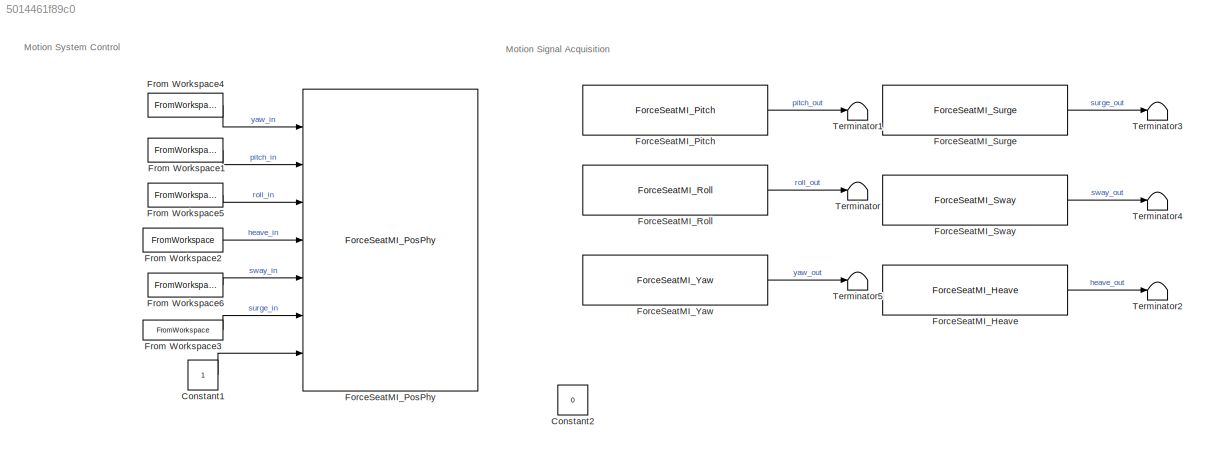
MODEL slx_5014461f89c0
KIND model
CONFIG AbsTol = auto
CONFIG EnableMultiTasking = off
CONFIG FixedStep = auto
CONFIG MaxStep = auto
CONFIG MinStep = auto
CONFIG RelTol = 1e-3
CONFIG SampleTimeConstraint = Unconstrained
CONFIG SolverName = VariableStepAuto
CONFIG StartTime = 0.0
CONFIG StopTime = 165
BLOCK [Constant] Constant1
  OutDataTypeStr = int32
BLOCK [Constant] Constant2
  Commented = on
  Value = 0
BLOCK [Reference] ForceSeatMI_Heave  REF=MotionSystems_Simulink/ForceSeatMI_Heave
  Ports = [0, 1]
  SourceBlock = MotionSystems_Simulink/ForceSeatMI_Heave
  SourceProductName = MotionsSystems ForceSeatMI
  SourceType = CCaller
BLOCK [Reference] ForceSeatMI_Pitch  REF=MotionSystems_Simulink/ForceSeatMI_Pitch
  Ports = [0, 1]
  SourceBlock = MotionSystems_Simulink/ForceSeatMI_Pitch
  SourceProductName = MotionsSystems ForceSeatMI
  SourceType = CCaller
BLOCK [Reference] ForceSeatMI_PosPhy  REF=MotionSystems_Simulink/ForceSeatMI_PosPhy
  Ports = [7]
  SourceBlock = MotionSystems_Simulink/ForceSeatMI_PosPhy
  SourceType = CCaller
BLOCK [Reference] ForceSeatMI_Roll  REF=MotionSystems_Simulink/ForceSeatMI_Roll
  Ports = [0, 1]
  SourceBlock = MotionSystems_Simulink/ForceSeatMI_Roll
  SourceProductName = MotionsSystems ForceSeatMI
  SourceType = CCaller
BLOCK [Reference] ForceSeatMI_Surge  REF=MotionSystems_Simulink/ForceSeatMI_Surge
  Ports = [0, 1]
  SourceBlock = MotionSystems_Simulink/ForceSeatMI_Surge
  SourceProductName = MotionsSystems ForceSeatMI
  SourceType = CCaller
BLOCK [Reference] ForceSeatMI_Sway  REF=MotionSystems_Simulink/ForceSeatMI_Sway
  Ports = [0, 1]
  SourceBlock = MotionSystems_Simulink/ForceSeatMI_Sway
  SourceProductName = MotionsSystems ForceSeatMI
  SourceType = CCaller
BLOCK [Reference] ForceSeatMI_Yaw  REF=MotionSystems_Simulink/ForceSeatMI_Yaw
  Ports = [0, 1]
  SourceBlock = MotionSystems_Simulink/ForceSeatMI_Yaw
  SourceType = CCaller
BLOCK [FromWorkspace] From Workspace1
  SampleTime = 0.025
  VariableName = Pitch_v12
BLOCK [FromWorkspace] From Workspace2
  SampleTime = 0.025
  VariableName = Heave_v12
BLOCK [FromWorkspace] From Workspace3
  SampleTime = 0.025
  VariableName = Surge_v12
BLOCK [FromWorkspace] From Workspace4
  SampleTime = 0.025
  VariableName = Yaw_v12
BLOCK [FromWorkspace] From Workspace5
  SampleTime = 0.025
  VariableName = Roll_v12
BLOCK [FromWorkspace] From Workspace6
  SampleTime = 0.025
  VariableName = Sway_v12
BLOCK [Terminator] Terminator
BLOCK [Terminator] Terminator1
BLOCK [Terminator] Terminator2
BLOCK [Terminator] Terminator3
BLOCK [Terminator] Terminator4
BLOCK [Terminator] Terminator5
ANNOTATION (root): Motion Signal Acquisition
ANNOTATION (root): Motion System Control
LINE Constant1:1 -> ForceSeatMI_PosPhy:7
LINE ForceSeatMI_Heave:1 -> Terminator2:1
LINE ForceSeatMI_Pitch:1 -> Terminator1:1
LINE ForceSeatMI_Roll:1 -> Terminator:1
LINE ForceSeatMI_Surge:1 -> Terminator3:1
LINE ForceSeatMI_Sway:1 -> Terminator4:1
LINE ForceSeatMI_Yaw:1 -> Terminator5:1
LINE From Workspace1:1 -> ForceSeatMI_PosPhy:2
LINE From Workspace2:1 -> ForceSeatMI_PosPhy:4
LINE From Workspace3:1 -> ForceSeatMI_PosPhy:6
LINE From Workspace4:1 -> ForceSeatMI_PosPhy:1
LINE From Workspace5:1 -> ForceSeatMI_PosPhy:3
LINE From Workspace6:1 -> ForceSeatMI_PosPhy:5
